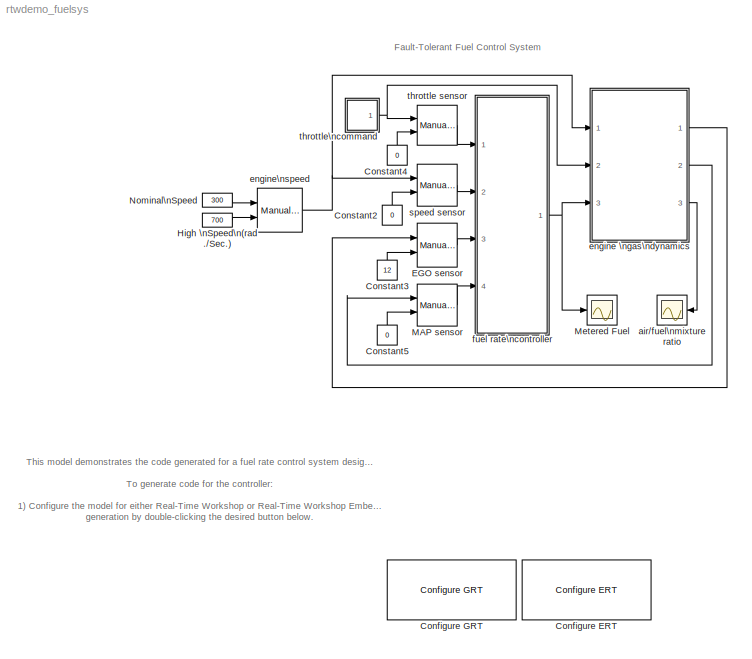
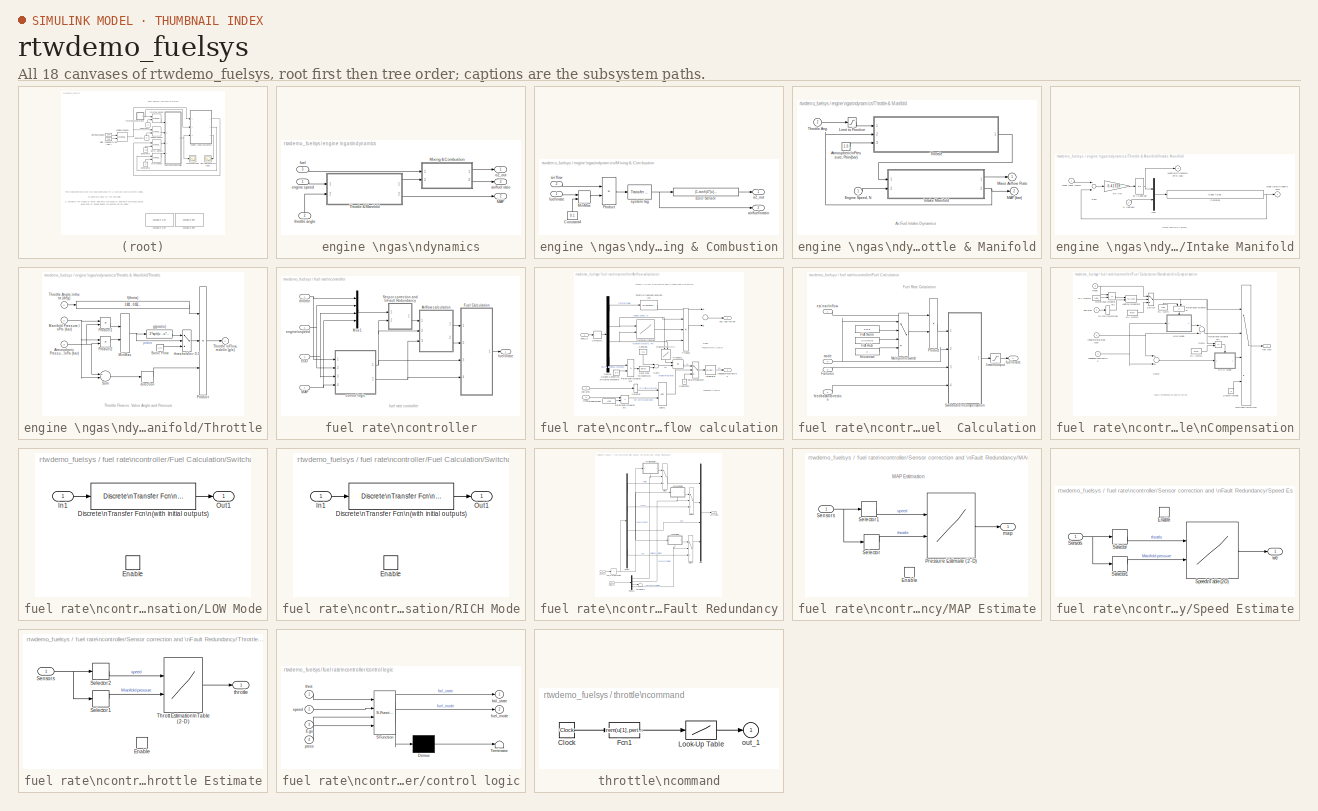
[diagram: thumbnail index - all 18 canvases of the model, root first then tree order]
MODEL rtwdemo_fuelsys
KIND model
CONFIG PostLoadFcn = disp(rtwdemolicensecheck('sfsfc'))
CONFIG PreLoadFcn = load fsysdat
BLOCK [Reference] Configure ERT  REF=rtwdemowidgets/Configure ERT
  Ports = []
  ShowPortLabels = on
  SourceBlock = rtwdemowidgets/Configure ERT
BLOCK [Reference] Configure GRT  REF=rtwdemowidgets/Configure GRT
  Ports = []
  ShowPortLabels = on
  SourceBlock = rtwdemowidgets/Configure GRT
BLOCK [Constant] Constant2
  Value = 0
BLOCK [Constant] Constant3
  Value = 12
BLOCK [Constant] Constant4
  Value = 0
BLOCK [Constant] Constant5
  Value = 0
BLOCK [Reference] EGO sensor  REF=simulink/Signal\nRouting/Manual Switch
  Ports = [2, 1]
  ShowPortLabels = on
  SourceBlock = simulink/Signal\nRouting/Manual Switch
  SourceType = Manual Switch
  action = 0
  sw = 1
BLOCK [Constant] High \nSpeed\n(rad.//Sec.)
  Value = 700
BLOCK [Reference] MAP sensor  REF=simulink/Signal\nRouting/Manual Switch
  Ports = [2, 1]
  ShowPortLabels = on
  SourceBlock = simulink/Signal\nRouting/Manual Switch
  SourceType = Manual Switch
  action = 0
  sw = 1
BLOCK [Scope] Metered Fuel
  DataFormat = Array
  LimitDataPoints = off
  NumInputPorts = 1
  Ports = [1]
  TickLabels = on
  TimeRange = 8
  YMax = 2.25
  YMin = 0.75
BLOCK [Constant] Nominal\nSpeed
  Value = 300
BLOCK [Scope] air//fuel\nmixture ratio
  DataFormat = Array
  LimitDataPoints = off
  NumInputPorts = 1
  Ports = [1]
  TickLabels = on
  TimeRange = 8
  YMax = 16
  YMin = 11
BLOCK [SubSystem] engine \ngas\ndynamics
  MinAlgLoopOccurrences = off
  Ports = [3, 3]
  PropExecContextAcrossSSBoundary = on
  RTWSystemCode = Auto
  TreatAsAtomicUnit = off
BLOCK [Outport] engine \ngas\ndynamics/MAP
  BusOutputAsStruct = off
  IconDisplay = Port number
  InitialOutput = 0
  Port = 2
BLOCK [SubSystem] engine \ngas\ndynamics/Mixing & Combustion
  MinAlgLoopOccurrences = off
  Ports = [2, 2]
  PropExecContextAcrossSSBoundary = on
  RTWSystemCode = Auto
  TreatAsAtomicUnit = off
BLOCK [Constant] engine \ngas\ndynamics/Mixing & Combustion/Constant4
  Value = 0.1
BLOCK [Fcn] engine \ngas\ndynamics/Mixing & Combustion/EGO Sensor
  Expr = (1-tanh(4*(u[1]-14.6)))/2
BLOCK [MinMax] engine \ngas\ndynamics/Mixing & Combustion/MinMax
  Function = max
  Inputs = 2
  Ports = [2, 1]
BLOCK [Product] engine \ngas\ndynamics/Mixing & Combustion/Product
  Inputs = */
  Ports = [2, 1]
BLOCK [Inport] engine \ngas\ndynamics/Mixing & Combustion/air flow
  IconDisplay = Port number
  LatchInput = off
  Port = 2
BLOCK [Outport] engine \ngas\ndynamics/Mixing & Combustion/air//fuel\nratio
  BusOutputAsStruct = off
  IconDisplay = Port number
  InitialOutput = 0
  Port = 2
BLOCK [Inport] engine \ngas\ndynamics/Mixing & Combustion/fuel\nrate
  IconDisplay = Port number
  LatchInput = off
  Port = 1
BLOCK [Outport] engine \ngas\ndynamics/Mixing & Combustion/o2_out
  BusOutputAsStruct = off
  IconDisplay = Port number
  InitialOutput = 0
BLOCK [Reference] engine \ngas\ndynamics/Mixing & Combustion/system lag  REF=simulink_extras/Additional\nLinear/Transfer Fcn\n(with initial outputs)
  D = [1 3]
  N = 3
  Ports = [1, 1]
  ShowPortLabels = on
  SourceBlock = simulink_extras/Additional\nLinear/Transfer Fcn\n(with initial outputs)
  SourceType = Transfer Function with Initial Outputs
  U0 = 1/14.6
  Y0 = 1/14.6
BLOCK [SubSystem] engine \ngas\ndynamics/Throttle & Manifold
  MinAlgLoopOccurrences = off
  Ports = [2, 2]
  PropExecContextAcrossSSBoundary = on
  RTWSystemCode = Auto
  TreatAsAtomicUnit = off
BLOCK [Constant] engine \ngas\ndynamics/Throttle & Manifold/Atmospheric\nPressure, Pa\n(bar)
  Value = 1.0
BLOCK [Inport] engine \ngas\ndynamics/Throttle & Manifold/Engine Speed, N
  IconDisplay = Port number
  LatchInput = off
  Port = 1
BLOCK [SubSystem] engine \ngas\ndynamics/Throttle & Manifold/Intake Manifold
  MinAlgLoopOccurrences = off
  Ports = [2, 2]
  PropExecContextAcrossSSBoundary = on
  RTWSystemCode = Auto
  TreatAsAtomicUnit = off
BLOCK [Outport] engine \ngas\ndynamics/Throttle & Manifold/Intake Manifold/Manifold Pressure,\nPm (bar)
  BusOutputAsStruct = off
  IconDisplay = Port number
  InitialOutput = 0
  Port = 2
BLOCK [Mux] engine \ngas\ndynamics/Throttle & Manifold/Intake Manifold/Mux
  Inputs = 2
  Ports = [2, 1]
BLOCK [Inport] engine \ngas\ndynamics/Throttle & Manifold/Intake Manifold/N (rad//sec)
  IconDisplay = Port number
  LatchInput = off
  Port = 2
BLOCK [Fcn] engine \ngas\ndynamics/Throttle & Manifold/Intake Manifold/Pumping
  Expr = -0.366 + 0.08979*u[1]*u[2] - 0.0337*u[2]*u[1]*u[1] + 0.0001*u[1]*u[2]*u[2]
BLOCK [Gain] engine \ngas\ndynamics/Throttle & Manifold/Intake Manifold/RT//Vm
  Gain = 0.41328
BLOCK [Sum] engine \ngas\ndynamics/Throttle & Manifold/Intake Manifold/Sum
  Inputs = +-
  Ports = [2, 1]
BLOCK [Inport] engine \ngas\ndynamics/Throttle & Manifold/Intake Manifold/mdot Input \n(g//s)
  IconDisplay = Port number
  LatchInput = off
  Port = 1
BLOCK [Outport] engine \ngas\ndynamics/Throttle & Manifold/Intake Manifold/mdot to\nCylinder\n (g//s)
  BusOutputAsStruct = off
  IconDisplay = Port number
  InitialOutput = 0
BLOCK [Integrator] engine \ngas\ndynamics/Throttle & Manifold/Intake Manifold/p0 = 0.589 bar
  InitialCondition = .589
  Ports = [1, 1]
BLOCK [Saturate] engine \ngas\ndynamics/Throttle & Manifold/Limit to Positive
  LowerLimit = 0
  UpperLimit = inf
BLOCK [Outport] engine \ngas\ndynamics/Throttle & Manifold/MAP (bar)
  BusOutputAsStruct = off
  IconDisplay = Port number
  InitialOutput = 0
  Port = 2
BLOCK [Outport] engine \ngas\ndynamics/Throttle & Manifold/Mass Airflow Rate
  BusOutputAsStruct = off
  IconDisplay = Port number
  InitialOutput = 0
BLOCK [SubSystem] engine \ngas\ndynamics/Throttle & Manifold/Throttle
  MinAlgLoopOccurrences = off
  Ports = [3, 1]
  PropExecContextAcrossSSBoundary = on
  RTWSystemCode = Auto
  TreatAsAtomicUnit = off
BLOCK [Inport] engine \ngas\ndynamics/Throttle & Manifold/Throttle Ang.
  IconDisplay = Port number
  LatchInput = off
  Port = 2
BLOCK [Inport] engine \ngas\ndynamics/Throttle & Manifold/Throttle/Atmospheric Pressure,\nPa (bar) 
  IconDisplay = Port number
  LatchInput = off
  Port = 3
BLOCK [Inport] engine \ngas\ndynamics/Throttle & Manifold/Throttle/Manifold Pressure,\nPm (bar)
  IconDisplay = Port number
  LatchInput = off
  Port = 2
BLOCK [MinMax] engine \ngas\ndynamics/Throttle & Manifold/Throttle/MinMax
  Function = min
  Inputs = 2
  Ports = [2, 1]
BLOCK [Product] engine \ngas\ndynamics/Throttle & Manifold/Throttle/Product
  Inputs = 3
  Ports = [3, 1]
BLOCK [Product] engine \ngas\ndynamics/Throttle & Manifold/Throttle/Product1
  Inputs = */
  Ports = [2, 1]
BLOCK [Product] engine \ngas\ndynamics/Throttle & Manifold/Throttle/Product2
  Inputs = /*
  Ports = [2, 1]
BLOCK [Constant] engine \ngas\ndynamics/Throttle & Manifold/Throttle/Sonic Flow 
  Value = 1.0
BLOCK [Sum] engine \ngas\ndynamics/Throttle & Manifold/Throttle/Sum
  Inputs = +-
  Ports = [2, 1]
BLOCK [Inport] engine \ngas\ndynamics/Throttle & Manifold/Throttle/Throttle Angle,\ntheta (deg)
  IconDisplay = Port number
  LatchInput = off
  Port = 1
BLOCK [Outport] engine \ngas\ndynamics/Throttle & Manifold/Throttle/Throttle \nFlow, mdot\n (g//s)
  BusOutputAsStruct = off
  IconDisplay = Port number
  InitialOutput = 0
BLOCK [Signum] engine \ngas\ndynamics/Throttle & Manifold/Throttle/direction
BLOCK [Fcn] engine \ngas\ndynamics/Throttle & Manifold/Throttle/f(theta)
  Expr = 2.821 - 0.05231*u[1] + 0.10299*u[1]*u[1] - 0.00063*u[1]*u[1]*u[1]
BLOCK [Fcn] engine \ngas\ndynamics/Throttle & Manifold/Throttle/g(pratio)
  Expr = 2*sqrt(u - u*u)
BLOCK [Switch] engine \ngas\ndynamics/Throttle & Manifold/Throttle/threshold\n= 0.5
  Threshold = 0.5
BLOCK [Outport] engine \ngas\ndynamics/air//fuel ratio
  BusOutputAsStruct = off
  IconDisplay = Port number
  InitialOutput = 0
  Port = 3
BLOCK [Inport] engine \ngas\ndynamics/engine speed
  IconDisplay = Port number
  LatchInput = off
  Port = 1
BLOCK [Inport] engine \ngas\ndynamics/fuel
  IconDisplay = Port number
  LatchInput = off
  Port = 3
BLOCK [Outport] engine \ngas\ndynamics/o2_out
  BusOutputAsStruct = off
  IconDisplay = Port number
  InitialOutput = 0
BLOCK [Inport] engine \ngas\ndynamics/throttle angle
  IconDisplay = Port number
  LatchInput = off
  Port = 2
BLOCK [Reference] engine\nspeed  REF=simulink/Signal\nRouting/Manual Switch
  Ports = [2, 1]
  ShowPortLabels = on
  SourceBlock = simulink/Signal\nRouting/Manual Switch
  SourceType = Manual Switch
  action = 0
  sw = 1
BLOCK [SubSystem] fuel rate\ncontroller
  MinAlgLoopOccurrences = off
  Ports = [4, 1]
  PropExecContextAcrossSSBoundary = on
  RTWSystemCode = Auto
  TreatAsAtomicUnit = off
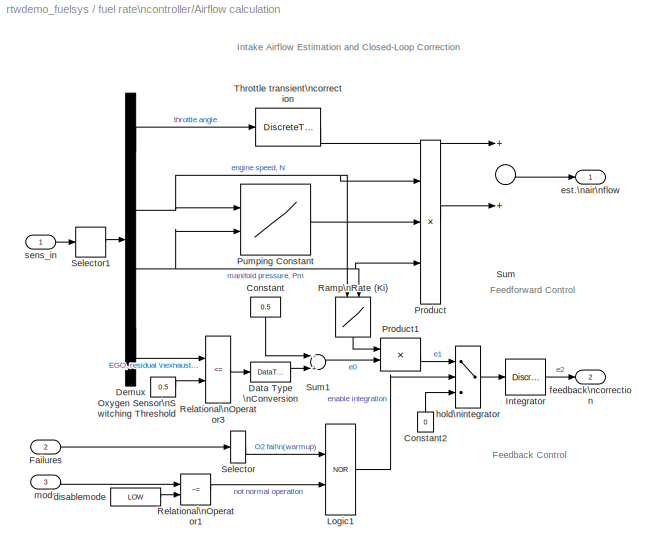
BLOCK [SubSystem] fuel rate\ncontroller/Airflow calculation
  MinAlgLoopOccurrences = off
  Ports = [3, 2]
  PropExecContextAcrossSSBoundary = on
  RTWSystemCode = Auto
  TreatAsAtomicUnit = off
BLOCK [Constant] fuel rate\ncontroller/Airflow calculation/Constant
  Value = 0.5
BLOCK [Constant] fuel rate\ncontroller/Airflow calculation/Constant2
  Value = 0
BLOCK [DataTypeConversion] fuel rate\ncontroller/Airflow calculation/Data Type \nConversion
  OutDataTypeMode = double
BLOCK [Demux] fuel rate\ncontroller/Airflow calculation/Demux
  Ports = [1, 4]
BLOCK [Inport] fuel rate\ncontroller/Airflow calculation/Failures
  IconDisplay = Port number
  LatchInput = off
  Port = 2
BLOCK [DiscreteIntegrator] fuel rate\ncontroller/Airflow calculation/Integrator
  ExternalReset = none
  ICPrevOutput = DiscIntNeverNeededParam
  ICPrevScaledInput = DiscIntNeverNeededParam
  InitialCondition = -0.01
  InitialConditionSource = internal
  IntegratorMethod = Integration: Forward Euler
  Ports = [1, 1]
  SampleTime = .01
BLOCK [Logic] fuel rate\ncontroller/Airflow calculation/Logic1
  Operator = NOR
  Ports = [2, 1]
BLOCK [Constant] fuel rate\ncontroller/Airflow calculation/Oxygen Sensor\nSwitching Threshold
  Value = 0.5
BLOCK [Product] fuel rate\ncontroller/Airflow calculation/Product
  Inputs = 3
  Ports = [3, 1]
BLOCK [Product] fuel rate\ncontroller/Airflow calculation/Product1
  Ports = [2, 1]
BLOCK [Lookup2D] fuel rate\ncontroller/Airflow calculation/Pumping Constant
  ColumnIndex = press
  DialogController = Simulink.DDGSource
  OutputValues = pumpCon
  RowIndex = SpeedVect
BLOCK [Lookup2D] fuel rate\ncontroller/Airflow calculation/Ramp\nRate (Ki)
  ColumnIndex = [0:0.2:1]
  DialogController = Simulink.DDGSource
  OutputValues = [1:5]'*[1:6]*Ki
  RowIndex = [100:100:500]
BLOCK [RelationalOperator] fuel rate\ncontroller/Airflow calculation/Relational\nOperator1
  Operator = ~=
BLOCK [RelationalOperator] fuel rate\ncontroller/Airflow calculation/Relational\nOperator3
  Operator = <=
BLOCK [Selector] fuel rate\ncontroller/Airflow calculation/Selector
  Elements = 3
  InputPortWidth = 4
  Ports = [1, 1]
BLOCK [Selector] fuel rate\ncontroller/Airflow calculation/Selector1
  Elements = [1 2 4 3]
  InputPortWidth = 4
  Ports = [1, 1]
BLOCK [Sum] fuel rate\ncontroller/Airflow calculation/Sum
  Inputs = 2
  Ports = [2, 1]
BLOCK [Sum] fuel rate\ncontroller/Airflow calculation/Sum1
  Inputs = -+
  Ports = [2, 1]
BLOCK [DiscreteTransferFcn] fuel rate\ncontroller/Airflow calculation/Throttle transient\ncorrection
  Denominator = [1 -0.8]
  Numerator = [0.01 -0.01]
  SampleTime = .01
BLOCK [Constant] fuel rate\ncontroller/Airflow calculation/disablemode
  Value = LOW
BLOCK [Outport] fuel rate\ncontroller/Airflow calculation/est.\nair\nflow
  BusOutputAsStruct = off
  IconDisplay = Port number
  InitialOutput = 0
BLOCK [Outport] fuel rate\ncontroller/Airflow calculation/feedback\ncorrection
  BusOutputAsStruct = off
  IconDisplay = Port number
  InitialOutput = 0
  Port = 2
BLOCK [Switch] fuel rate\ncontroller/Airflow calculation/hold\nintegrator
  Threshold = 1
BLOCK [Inport] fuel rate\ncontroller/Airflow calculation/mode
  IconDisplay = Port number
  LatchInput = off
  Port = 3
BLOCK [Inport] fuel rate\ncontroller/Airflow calculation/sens_in
  IconDisplay = Port number
  LatchInput = off
  Port = 1
BLOCK [Inport] fuel rate\ncontroller/EGO
  IconDisplay = Port number
  LatchInput = off
  Port = 3
BLOCK [SubSystem] fuel rate\ncontroller/Fuel  Calculation
  MinAlgLoopOccurrences = off
  Ports = [4, 1]
  PropExecContextAcrossSSBoundary = on
  RTWSystemCode = Auto
  TreatAsAtomicUnit = off
BLOCK [Constant] fuel rate\ncontroller/Fuel  Calculation/F//A Norm
  Value = 1/14.6
BLOCK [Constant] fuel rate\ncontroller/Fuel  Calculation/F//A Rich
  Value = 1/(14.6*0.8)
BLOCK [Inport] fuel rate\ncontroller/Fuel  Calculation/Failures
  IconDisplay = Port number
  LatchInput = off
  Port = 3
BLOCK [MultiPortSwitch] fuel rate\ncontroller/Fuel  Calculation/Multiport\nSwitch
  Inputs = 3
  Ports = [4, 1]
BLOCK [Product] fuel rate\ncontroller/Fuel  Calculation/Product
  Ports = [2, 1]
BLOCK [Constant] fuel rate\ncontroller/Fuel  Calculation/Shutdown
  Value = 0
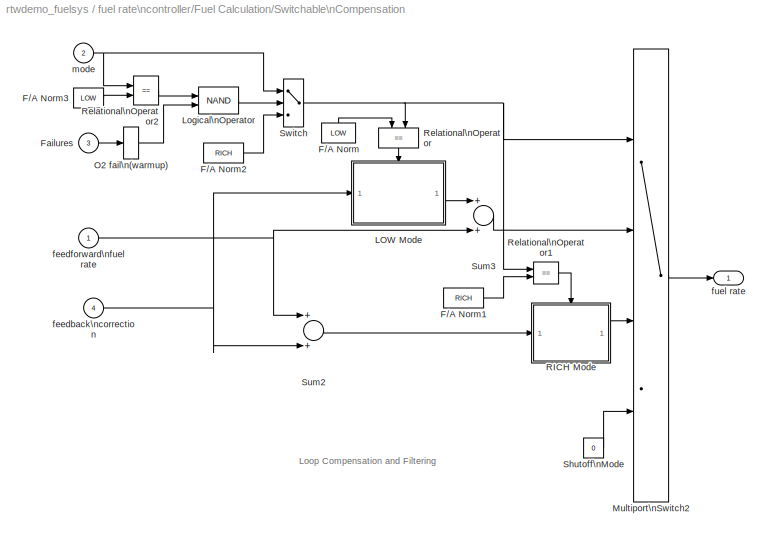
BLOCK [SubSystem] fuel rate\ncontroller/Fuel  Calculation/Switchable\nCompensation
  MaskIconFrame = on
  MaskIconOpaque = on
  MaskIconRotate = none
  MaskIconUnits = autoscale
  MinAlgLoopOccurrences = off
  Ports = [4, 1]
  PropExecContextAcrossSSBoundary = on
  RTWSystemCode = Auto
  TreatAsAtomicUnit = off
BLOCK [Constant] fuel rate\ncontroller/Fuel  Calculation/Switchable\nCompensation/F//A Norm
  Value = LOW
BLOCK [Constant] fuel rate\ncontroller/Fuel  Calculation/Switchable\nCompensation/F//A Norm1
  Value = RICH
BLOCK [Constant] fuel rate\ncontroller/Fuel  Calculation/Switchable\nCompensation/F//A Norm2
  Value = RICH
BLOCK [Constant] fuel rate\ncontroller/Fuel  Calculation/Switchable\nCompensation/F//A Norm3
  Value = LOW
BLOCK [Inport] fuel rate\ncontroller/Fuel  Calculation/Switchable\nCompensation/Failures
  IconDisplay = Port number
  LatchInput = off
  Port = 3
BLOCK [SubSystem] fuel rate\ncontroller/Fuel  Calculation/Switchable\nCompensation/LOW Mode
  MaskCallbackString = ||||
  MaskDisplay = dpoly(num,den,'z')
  MaskEnableString = on,on,on,on,on
  MaskIconFrame = on
  MaskIconOpaque = off
  MaskIconRotate = none
  MaskIconUnits = autoscale
  MaskPromptString = numerator polynomial|denominator polynomial|initial input|initial output|sample time
  MaskStyleString = edit,edit,edit,edit,edit
  MaskTabNameString = ,,,,
  MaskToolTipString = on,on,on,on,on
  MaskTunableValueString = on,on,on,on,on
  MaskType = enabled discrete-time transfer function
  MaskValueString = B1|A1|-0.01|-0.01|0.01
  MaskVarAliasString = ,,,,
  MaskVariables = num=@1;den=@2;u0=@3;y0=@4;Ts=@5;
  MaskVisibilityString = on,on,on,on,on
  MinAlgLoopOccurrences = off
  Ports = [1, 1, 1]
  PropExecContextAcrossSSBoundary = on
  RTWSystemCode = Auto
  TreatAsAtomicUnit = off
BLOCK [Reference] fuel rate\ncontroller/Fuel  Calculation/Switchable\nCompensation/LOW Mode/Discrete\nTransfer Fcn\n(with initial outputs)  REF=simulink_extras/Additional\nDiscrete/Discrete\nTransfer Fcn\n(with initial outputs)
  D = den
  N = num
  Ports = [1, 1]
  ShowPortLabels = on
  SourceBlock = simulink_extras/Additional\nDiscrete/Discrete\nTransfer Fcn\n(with initial outputs)
  SourceType = Discrete Transfer Function with Initial Outputs
  TS = Ts
  U0 = u0
  Y0 = y0
BLOCK [EnablePort] fuel rate\ncontroller/Fuel  Calculation/Switchable\nCompensation/LOW Mode/Enable
  Ports = []
  StatesWhenEnabling = reset
BLOCK [Inport] fuel rate\ncontroller/Fuel  Calculation/Switchable\nCompensation/LOW Mode/In1
  IconDisplay = Port number
  LatchInput = off
  Port = 1
BLOCK [Outport] fuel rate\ncontroller/Fuel  Calculation/Switchable\nCompensation/LOW Mode/Out1
  BusOutputAsStruct = off
  IconDisplay = Port number
  InitialOutput = y0
BLOCK [Logic] fuel rate\ncontroller/Fuel  Calculation/Switchable\nCompensation/Logical\nOperator
  Operator = NAND
  Ports = [2, 1]
BLOCK [MultiPortSwitch] fuel rate\ncontroller/Fuel  Calculation/Switchable\nCompensation/Multiport\nSwitch2
  Inputs = 3
  Ports = [4, 1]
BLOCK [Selector] fuel rate\ncontroller/Fuel  Calculation/Switchable\nCompensation/O2 fail\n(warmup)
  Elements = 3
  InputPortWidth = 4
  Ports = [1, 1]
BLOCK [SubSystem] fuel rate\ncontroller/Fuel  Calculation/Switchable\nCompensation/RICH Mode
  MaskCallbackString = ||||
  MaskDisplay = dpoly(num,den,'z')
  MaskEnableString = on,on,on,on,on
  MaskIconFrame = on
  MaskIconOpaque = off
  MaskIconRotate = none
  MaskIconUnits = autoscale
  MaskPromptString = numerator polynomial|denominator polynomial|initial input|initial output|sample time
  MaskStyleString = edit,edit,edit,edit,edit
  MaskTabNameString = ,,,,
  MaskToolTipString = on,on,on,on,on
  MaskTunableValueString = on,on,on,on,on
  MaskType = enabled discrete-time transfer function
  MaskValueString = B2|A2|1.6|1.6|0.01
  MaskVarAliasString = ,,,,
  MaskVariables = num=@1;den=@2;u0=@3;y0=@4;Ts=@5;
  MaskVisibilityString = on,on,on,on,on
  MinAlgLoopOccurrences = off
  Ports = [1, 1, 1]
  PropExecContextAcrossSSBoundary = on
  RTWSystemCode = Auto
  TreatAsAtomicUnit = off
BLOCK [Reference] fuel rate\ncontroller/Fuel  Calculation/Switchable\nCompensation/RICH Mode/Discrete\nTransfer Fcn\n(with initial outputs)  REF=simulink_extras/Additional\nDiscrete/Discrete\nTransfer Fcn\n(with initial outputs)
  D = den
  N = num
  Ports = [1, 1]
  ShowPortLabels = on
  SourceBlock = simulink_extras/Additional\nDiscrete/Discrete\nTransfer Fcn\n(with initial outputs)
  SourceType = Discrete Transfer Function with Initial Outputs
  TS = Ts
  U0 = u0
  Y0 = y0
BLOCK [EnablePort] fuel rate\ncontroller/Fuel  Calculation/Switchable\nCompensation/RICH Mode/Enable
  Ports = []
  StatesWhenEnabling = reset
BLOCK [Inport] fuel rate\ncontroller/Fuel  Calculation/Switchable\nCompensation/RICH Mode/In1
  IconDisplay = Port number
  LatchInput = off
  Port = 1
BLOCK [Outport] fuel rate\ncontroller/Fuel  Calculation/Switchable\nCompensation/RICH Mode/Out1
  BusOutputAsStruct = off
  IconDisplay = Port number
  InitialOutput = y0
BLOCK [RelationalOperator] fuel rate\ncontroller/Fuel  Calculation/Switchable\nCompensation/Relational\nOperator
  Operator = ==
BLOCK [RelationalOperator] fuel rate\ncontroller/Fuel  Calculation/Switchable\nCompensation/Relational\nOperator1
  Operator = ==
BLOCK [RelationalOperator] fuel rate\ncontroller/Fuel  Calculation/Switchable\nCompensation/Relational\nOperator2
  Operator = ==
BLOCK [Constant] fuel rate\ncontroller/Fuel  Calculation/Switchable\nCompensation/Shutoff\nMode
  Value = 0
BLOCK [Sum] fuel rate\ncontroller/Fuel  Calculation/Switchable\nCompensation/Sum2
  Ports = [2, 1]
BLOCK [Sum] fuel rate\ncontroller/Fuel  Calculation/Switchable\nCompensation/Sum3
  Ports = [2, 1]
BLOCK [Switch] fuel rate\ncontroller/Fuel  Calculation/Switchable\nCompensation/Switch
  Threshold = 1
BLOCK [Inport] fuel rate\ncontroller/Fuel  Calculation/Switchable\nCompensation/feedback\ncorrection
  IconDisplay = Port number
  LatchInput = off
  Port = 4
BLOCK [Inport] fuel rate\ncontroller/Fuel  Calculation/Switchable\nCompensation/feedforward\nfuel rate
  IconDisplay = Port number
  LatchInput = off
  Port = 1
BLOCK [Outport] fuel rate\ncontroller/Fuel  Calculation/Switchable\nCompensation/fuel rate
  BusOutputAsStruct = off
  IconDisplay = Port number
  InitialOutput = 0
BLOCK [Inport] fuel rate\ncontroller/Fuel  Calculation/Switchable\nCompensation/mode
  IconDisplay = Port number
  LatchInput = off
  Port = 2
BLOCK [Inport] fuel rate\ncontroller/Fuel  Calculation/est.\nair\nflow
  IconDisplay = Port number
  LatchInput = off
  Port = 1
BLOCK [Inport] fuel rate\ncontroller/Fuel  Calculation/feedback\ncorrection
  IconDisplay = Port number
  LatchInput = off
  Port = 2
BLOCK [Outport] fuel rate\ncontroller/Fuel  Calculation/fuel\nrate
  BusOutputAsStruct = off
  IconDisplay = Port number
  InitialOutput = 0
BLOCK [Saturate] fuel rate\ncontroller/Fuel  Calculation/limit\noutput
  LowerLimit = 0
  UpperLimit = 100
BLOCK [Inport] fuel rate\ncontroller/Fuel  Calculation/mode
  IconDisplay = Port number
  LatchInput = off
  Port = 4
BLOCK [Inport] fuel rate\ncontroller/MAP
  IconDisplay = Port number
  LatchInput = off
  Port = 4
BLOCK [Mux] fuel rate\ncontroller/Mux1
  Ports = [4, 1]
BLOCK [SubSystem] fuel rate\ncontroller/Sensor correction and \nFault Redundancy
  MinAlgLoopOccurrences = off
  Ports = [2, 1]
  PropExecContextAcrossSSBoundary = on
  RTWSystemCode = Auto
  TreatAsAtomicUnit = off
BLOCK [Outport] fuel rate\ncontroller/Sensor correction and \nFault Redundancy/Corrected
  BusOutputAsStruct = off
  IconDisplay = Port number
  InitialOutput = 0
BLOCK [Demux] fuel rate\ncontroller/Sensor correction and \nFault Redundancy/Demux
  Ports = [1, 4]
BLOCK [Demux] fuel rate\ncontroller/Sensor correction and \nFault Redundancy/Demux1
  Ports = [1, 4]
BLOCK [Inport] fuel rate\ncontroller/Sensor correction and \nFault Redundancy/Failures
  IconDisplay = Port number
  LatchInput = off
  Port = 2
BLOCK [SubSystem] fuel rate\ncontroller/Sensor correction and \nFault Redundancy/MAP Estimate
  MinAlgLoopOccurrences = off
  Ports = [1, 1, 1]
  PropExecContextAcrossSSBoundary = on
  RTWSystemCode = Auto
  TreatAsAtomicUnit = off
BLOCK [EnablePort] fuel rate\ncontroller/Sensor correction and \nFault Redundancy/MAP Estimate/Enable
  Ports = []
BLOCK [Lookup2D] fuel rate\ncontroller/Sensor correction and \nFault Redundancy/MAP Estimate/Pressure Estimate (2-D)
  ColumnIndex = ThrotVect
  DialogController = Simulink.DDGSource
  OutputValues = PressEst
  RowIndex = SpeedVect
BLOCK [Selector] fuel rate\ncontroller/Sensor correction and \nFault Redundancy/MAP Estimate/Selector
  InputPortWidth = 4
  Ports = [1, 1]
BLOCK [Selector] fuel rate\ncontroller/Sensor correction and \nFault Redundancy/MAP Estimate/Selector1
  Elements = 2
  InputPortWidth = 4
  Ports = [1, 1]
BLOCK [Inport] fuel rate\ncontroller/Sensor correction and \nFault Redundancy/MAP Estimate/Sensors
  IconDisplay = Port number
  LatchInput = off
  Port = 1
BLOCK [Outport] fuel rate\ncontroller/Sensor correction and \nFault Redundancy/MAP Estimate/map
  BusOutputAsStruct = off
  IconDisplay = Port number
  InitialOutput = 0
BLOCK [Mux] fuel rate\ncontroller/Sensor correction and \nFault Redundancy/Mux
  Ports = [4, 1]
BLOCK [Inport] fuel rate\ncontroller/Sensor correction and \nFault Redundancy/Sensors
  IconDisplay = Port number
  LatchInput = off
  Port = 1
BLOCK [SubSystem] fuel rate\ncontroller/Sensor correction and \nFault Redundancy/Speed Estimate
  MinAlgLoopOccurrences = off
  Ports = [1, 1, 1]
  PropExecContextAcrossSSBoundary = on
  RTWSystemCode = Auto
  TreatAsAtomicUnit = off
BLOCK [EnablePort] fuel rate\ncontroller/Sensor correction and \nFault Redundancy/Speed Estimate/Enable
  Ports = []
BLOCK [Selector] fuel rate\ncontroller/Sensor correction and \nFault Redundancy/Speed Estimate/Selector
  InputPortWidth = 4
  Ports = [1, 1]
BLOCK [Selector] fuel rate\ncontroller/Sensor correction and \nFault Redundancy/Speed Estimate/Selector1
  Elements = 4
  InputPortWidth = 4
  Ports = [1, 1]
BLOCK [Inport] fuel rate\ncontroller/Sensor correction and \nFault Redundancy/Speed Estimate/Sensors
  IconDisplay = Port number
  LatchInput = off
  Port = 1
BLOCK [Lookup2D] fuel rate\ncontroller/Sensor correction and \nFault Redundancy/Speed Estimate/Speed\nTable (2-D)
  ColumnIndex = press
  DialogController = Simulink.DDGSource
  OutputValues = SpeedEst
  RowIndex = ThrotVect
BLOCK [Outport] fuel rate\ncontroller/Sensor correction and \nFault Redundancy/Speed Estimate/we
  BusOutputAsStruct = off
  IconDisplay = Port number
  InitialOutput = 0
BLOCK [Switch] fuel rate\ncontroller/Sensor correction and \nFault Redundancy/Switch
  Threshold = 1
BLOCK [Switch] fuel rate\ncontroller/Sensor correction and \nFault Redundancy/Switch3
  Threshold = 1
BLOCK [Switch] fuel rate\ncontroller/Sensor correction and \nFault Redundancy/Switch4
  Threshold = 1
BLOCK [Terminator] fuel rate\ncontroller/Sensor correction and \nFault Redundancy/Terminator1
BLOCK [SubSystem] fuel rate\ncontroller/Sensor correction and \nFault Redundancy/Throttle Estimate
  MinAlgLoopOccurrences = off
  Ports = [1, 1, 1]
  PropExecContextAcrossSSBoundary = on
  RTWSystemCode = Auto
  TreatAsAtomicUnit = off
BLOCK [EnablePort] fuel rate\ncontroller/Sensor correction and \nFault Redundancy/Throttle Estimate/Enable
  Ports = []
BLOCK [Selector] fuel rate\ncontroller/Sensor correction and \nFault Redundancy/Throttle Estimate/Selector1
  Elements = 4
  InputPortWidth = 4
  Ports = [1, 1]
BLOCK [Selector] fuel rate\ncontroller/Sensor correction and \nFault Redundancy/Throttle Estimate/Selector2
  Elements = 2
  InputPortWidth = 4
  Ports = [1, 1]
BLOCK [Inport] fuel rate\ncontroller/Sensor correction and \nFault Redundancy/Throttle Estimate/Sensors
  IconDisplay = Port number
  LatchInput = off
  Port = 1
BLOCK [Lookup2D] fuel rate\ncontroller/Sensor correction and \nFault Redundancy/Throttle Estimate/Thrott Estimation\nTable (2-D)
  ColumnIndex = press
  DialogController = Simulink.DDGSource
  OutputValues = ThrotEst
  RowIndex = SpeedVect
BLOCK [Outport] fuel rate\ncontroller/Sensor correction and \nFault Redundancy/Throttle Estimate/throtle
  BusOutputAsStruct = off
  IconDisplay = Port number
  InitialOutput = 0
BLOCK [ZeroOrderHold] fuel rate\ncontroller/Sensor correction and \nFault Redundancy/Zero-Order\nHold
  SampleTime = 0.01
BLOCK [SubSystem] fuel rate\ncontroller/control logic
  Description = Stateflow diagram to determine control system operating mode
  MaskDescription = Stateflow diagram
  MaskDisplay = plot(sf('Private','sfblk','xIcon'),sf('Private','sfblk','yIcon'));text(0.5,0,sf('Private', 'sfblk', 'tIcon'),'HorizontalAl','Center','VerticalAl','Bottom');
  MaskIconFrame = off
  MaskIconOpaque = off
  MaskIconRotate = none
  MaskIconUnits = autoscale
  MaskSelfModifiable = on
  MaskType = Stateflow
  MinAlgLoopOccurrences = off
  Ports = [4, 2]
  PropExecContextAcrossSSBoundary = on
  RTWSystemCode = Auto
  TreatAsAtomicUnit = off
BLOCK [Demux] fuel rate\ncontroller/control logic/ Demux 
  Outputs = 1
  Ports = [1, 1]
BLOCK [S-Function] fuel rate\ncontroller/control logic/ SFunction 
  FunctionName = sf_sfun
  Parameters = DISABLED,LOW,RICH,hys,max_ego,max_press,max_speed,max_throt,min_press,min_throt,o2_t_thresh,zero_thresh
  PortCounts = [4 3]
  Ports = [4, 3]
  Tag = Stateflow S-Function rtwdemo_fuelsys 1
BLOCK [Terminator] fuel rate\ncontroller/control logic/ Terminator 
BLOCK [Inport] fuel rate\ncontroller/control logic/Ego
  IconDisplay = Port number
  LatchInput = off
  Port = 3
BLOCK [Outport] fuel rate\ncontroller/control logic/fail_state
  BusOutputAsStruct = off
  IconDisplay = Port number
BLOCK [Outport] fuel rate\ncontroller/control logic/fuel_mode
  BusOutputAsStruct = off
  IconDisplay = Port number
  Port = 2
BLOCK [Inport] fuel rate\ncontroller/control logic/press
  IconDisplay = Port number
  LatchInput = off
  Port = 4
BLOCK [Inport] fuel rate\ncontroller/control logic/speed
  IconDisplay = Port number
  LatchInput = off
  Port = 2
BLOCK [Inport] fuel rate\ncontroller/control logic/throt
  IconDisplay = Port number
  LatchInput = off
  Port = 1
BLOCK [Inport] fuel rate\ncontroller/engine\nspeed
  IconDisplay = Port number
  LatchInput = off
  Port = 2
BLOCK [Outport] fuel rate\ncontroller/fuel\nrate
  BusOutputAsStruct = off
  IconDisplay = Port number
  InitialOutput = 0
BLOCK [Inport] fuel rate\ncontroller/throttle
  IconDisplay = Port number
  LatchInput = off
  Port = 1
BLOCK [Reference] speed sensor  REF=simulink/Signal\nRouting/Manual Switch
  Ports = [2, 1]
  ShowPortLabels = on
  SourceBlock = simulink/Signal\nRouting/Manual Switch
  SourceType = Manual Switch
  action = 0
  sw = 1
BLOCK [Reference] throttle sensor  REF=simulink/Signal\nRouting/Manual Switch
  Ports = [2, 1]
  ShowPortLabels = on
  SourceBlock = simulink/Signal\nRouting/Manual Switch
  SourceType = Manual Switch
  action = 0
  sw = 1
BLOCK [SubSystem] throttle\ncommand
  MaskCallbackString = |
  MaskDescription = Repeating table.
  MaskDisplay = plot([rep_seq_t,rep_seq_t+period,rep_seq_t+2*period,rep_seq_t(1)+3*period],[rep_seq_y,rep_seq_y,rep_seq_y,rep_seq_y(1)])
  MaskEnableString = on,on
  MaskHelp = Repeats cycle given in table. Time values should be monotonically increasing.
  MaskIconFrame = on
  MaskIconOpaque = on
  MaskIconRotate = none
  MaskIconUnits = autoscale
  MaskInitialization = period = max(rep_seq_t);\n
  MaskPromptString = Time values:|Output values:
  MaskStyleString = edit,edit
  MaskTabNameString = ,
  MaskToolTipString = on,on
  MaskTunableValueString = on,on
  MaskType = Repeating table
  MaskValueString = [0 2 4]|[10 20 10]
  MaskVarAliasString = ,
  MaskVariables = rep_seq_t=@1;rep_seq_y=@2;
  MaskVisibilityString = on,on
  MinAlgLoopOccurrences = off
  Ports = [0, 1]
  PropExecContextAcrossSSBoundary = on
  RTWSystemCode = Auto
  TreatAsAtomicUnit = off
BLOCK [Clock] throttle\ncommand/Clock
  Decimation = 10
BLOCK [Fcn] throttle\ncommand/Fcn1
  Expr = rem(u[1],period)
BLOCK [Lookup] throttle\ncommand/Look-Up Table
  DialogController = Simulink.DDGSource
  InputValues = rep_seq_t
  OutputValues = rep_seq_y
BLOCK [Outport] throttle\ncommand/out_1
  BusOutputAsStruct = off
  IconDisplay = Port number
  InitialOutput = 0
ANNOTATION (root): Fault-Tolerant Fuel Control System
ANNOTATION (root): This model demonstrates the code generated for a fuel rate control system designed in Simulink and Stateflow.\n\nTo generate code for the controller:\n\n1) Configure the model for either Real-Time Workshop or Real-Time Workshop Embedded Coder code\n generation by double-clicking the desired button below.\n2) Right-click on the 'fuel rate controller' subsystem and select Real-Time Workshop --> Buil...<+172ch>
ANNOTATION engine \ngas\ndynamics/Throttle & Manifold: Air-Fuel Intake Dynamics
ANNOTATION engine \ngas\ndynamics/Throttle & Manifold/Intake Manifold: Intake Manifold Vacuum
ANNOTATION engine \ngas\ndynamics/Throttle & Manifold/Throttle: Throttle Flow vs. Valve Angle and Pressure
ANNOTATION fuel rate\ncontroller: fuel rate controller
ANNOTATION fuel rate\ncontroller/Airflow calculation: Feedback Control
ANNOTATION fuel rate\ncontroller/Airflow calculation: Feedforward Control
ANNOTATION fuel rate\ncontroller/Airflow calculation: Intake Airflow Estimation and Closed-Loop Correction
ANNOTATION fuel rate\ncontroller/Fuel  Calculation: Fuel Rate Calculation
ANNOTATION fuel rate\ncontroller/Fuel  Calculation/Switchable\nCompensation: Loop Compensation and Filtering
ANNOTATION fuel rate\ncontroller/Sensor correction and \nFault Redundancy/MAP Estimate: MAP Estimation
LINE Constant2:1 -> speed sensor:2
LINE Constant3:1 -> EGO sensor:2
LINE Constant4:1 -> throttle sensor:2
LINE Constant5:1 -> MAP sensor:2
LINE EGO sensor:1 -> fuel rate\ncontroller:3
LINE High \nSpeed\n(rad.//Sec.):1 -> engine\nspeed:2
LINE MAP sensor:1 -> fuel rate\ncontroller:4
LINE Nominal\nSpeed:1 -> engine\nspeed:1
LINE engine \ngas\ndynamics/Mixing & Combustion/Constant4:1 -> engine \ngas\ndynamics/Mixing & Combustion/MinMax:2
LINE engine \ngas\ndynamics/Mixing & Combustion/EGO Sensor:1 -> engine \ngas\ndynamics/Mixing & Combustion/o2_out:1
LINE engine \ngas\ndynamics/Mixing & Combustion/MinMax:1 -> engine \ngas\ndynamics/Mixing & Combustion/Product:2
LINE engine \ngas\ndynamics/Mixing & Combustion/Product:1 -> engine \ngas\ndynamics/Mixing & Combustion/system lag:1
LINE engine \ngas\ndynamics/Mixing & Combustion/air flow:1 -> engine \ngas\ndynamics/Mixing & Combustion/Product:1
LINE engine \ngas\ndynamics/Mixing & Combustion/fuel\nrate:1 -> engine \ngas\ndynamics/Mixing & Combustion/MinMax:1
NET engine \ngas\ndynamics/Mixing & Combustion/system lag:1 -> engine \ngas\ndynamics/Mixing & Combustion/EGO Sensor:1, engine \ngas\ndynamics/Mixing & Combustion/air//fuel\nratio:1
LINE engine \ngas\ndynamics/Mixing & Combustion:1 -> engine \ngas\ndynamics/o2_out:1
LINE engine \ngas\ndynamics/Mixing & Combustion:2 -> engine \ngas\ndynamics/air//fuel ratio:1
LINE engine \ngas\ndynamics/Throttle & Manifold/Atmospheric\nPressure, Pa\n(bar):1 -> engine \ngas\ndynamics/Throttle & Manifold/Throttle:3
LINE engine \ngas\ndynamics/Throttle & Manifold/Engine Speed, N:1 -> engine \ngas\ndynamics/Throttle & Manifold/Intake Manifold:2
LINE engine \ngas\ndynamics/Throttle & Manifold/Intake Manifold/Mux:1 -> engine \ngas\ndynamics/Throttle & Manifold/Intake Manifold/Pumping:1
LINE engine \ngas\ndynamics/Throttle & Manifold/Intake Manifold/N (rad//sec):1 -> engine \ngas\ndynamics/Throttle & Manifold/Intake Manifold/Mux:2
NET engine \ngas\ndynamics/Throttle & Manifold/Intake Manifold/Pumping:1 -> engine \ngas\ndynamics/Throttle & Manifold/Intake Manifold/Sum:2, engine \ngas\ndynamics/Throttle & Manifold/Intake Manifold/mdot to\nCylinder\n (g//s):1
LINE engine \ngas\ndynamics/Throttle & Manifold/Intake Manifold/RT//Vm:1 -> engine \ngas\ndynamics/Throttle & Manifold/Intake Manifold/p0 = 0.589 bar:1
LINE engine \ngas\ndynamics/Throttle & Manifold/Intake Manifold/Sum:1 -> engine \ngas\ndynamics/Throttle & Manifold/Intake Manifold/RT//Vm:1
LINE engine \ngas\ndynamics/Throttle & Manifold/Intake Manifold/mdot Input \n(g//s):1 -> engine \ngas\ndynamics/Throttle & Manifold/Intake Manifold/Sum:1
NET engine \ngas\ndynamics/Throttle & Manifold/Intake Manifold/p0 = 0.589 bar:1 -> engine \ngas\ndynamics/Throttle & Manifold/Intake Manifold/Manifold Pressure,\nPm (bar):1, engine \ngas\ndynamics/Throttle & Manifold/Intake Manifold/Mux:1
LINE engine \ngas\ndynamics/Throttle & Manifold/Intake Manifold:1 -> engine \ngas\ndynamics/Throttle & Manifold/Mass Airflow Rate:1
NET engine \ngas\ndynamics/Throttle & Manifold/Intake Manifold:2 -> engine \ngas\ndynamics/Throttle & Manifold/MAP (bar):1, engine \ngas\ndynamics/Throttle & Manifold/Throttle:2
LINE engine \ngas\ndynamics/Throttle & Manifold/Limit to Positive:1 -> engine \ngas\ndynamics/Throttle & Manifold/Throttle:1
LINE engine \ngas\ndynamics/Throttle & Manifold/Throttle Ang.:1 -> engine \ngas\ndynamics/Throttle & Manifold/Limit to Positive:1
NET engine \ngas\ndynamics/Throttle & Manifold/Throttle/Atmospheric Pressure,\nPa (bar) :1 -> engine \ngas\ndynamics/Throttle & Manifold/Throttle/Product1:2, engine \ngas\ndynamics/Throttle & Manifold/Throttle/Product2:2, engine \ngas\ndynamics/Throttle & Manifold/Throttle/Sum:1
NET engine \ngas\ndynamics/Throttle & Manifold/Throttle/Manifold Pressure,\nPm (bar):1 -> engine \ngas\ndynamics/Throttle & Manifold/Throttle/Product1:1, engine \ngas\ndynamics/Throttle & Manifold/Throttle/Product2:1, engine \ngas\ndynamics/Throttle & Manifold/Throttle/Sum:2
NET engine \ngas\ndynamics/Throttle & Manifold/Throttle/MinMax:1 -> engine \ngas\ndynamics/Throttle & Manifold/Throttle/g(pratio):1, engine \ngas\ndynamics/Throttle & Manifold/Throttle/threshold\n= 0.5:2
LINE engine \ngas\ndynamics/Throttle & Manifold/Throttle/Product1:1 -> engine \ngas\ndynamics/Throttle & Manifold/Throttle/MinMax:1
LINE engine \ngas\ndynamics/Throttle & Manifold/Throttle/Product2:1 -> engine \ngas\ndynamics/Throttle & Manifold/Throttle/MinMax:2
LINE engine \ngas\ndynamics/Throttle & Manifold/Throttle/Product:1 -> engine \ngas\ndynamics/Throttle & Manifold/Throttle/Throttle \nFlow, mdot\n (g//s):1
LINE engine \ngas\ndynamics/Throttle & Manifold/Throttle/Sonic Flow :1 -> engine \ngas\ndynamics/Throttle & Manifold/Throttle/threshold\n= 0.5:3
LINE engine \ngas\ndynamics/Throttle & Manifold/Throttle/Sum:1 -> engine \ngas\ndynamics/Throttle & Manifold/Throttle/direction:1
LINE engine \ngas\ndynamics/Throttle & Manifold/Throttle/Throttle Angle,\ntheta (deg):1 -> engine \ngas\ndynamics/Throttle & Manifold/Throttle/f(theta):1
LINE engine \ngas\ndynamics/Throttle & Manifold/Throttle/direction:1 -> engine \ngas\ndynamics/Throttle & Manifold/Throttle/Product:3
LINE engine \ngas\ndynamics/Throttle & Manifold/Throttle/f(theta):1 -> engine \ngas\ndynamics/Throttle & Manifold/Throttle/Product:1
LINE engine \ngas\ndynamics/Throttle & Manifold/Throttle/g(pratio):1 -> engine \ngas\ndynamics/Throttle & Manifold/Throttle/threshold\n= 0.5:1
LINE engine \ngas\ndynamics/Throttle & Manifold/Throttle/threshold\n= 0.5:1 -> engine \ngas\ndynamics/Throttle & Manifold/Throttle/Product:2
LINE engine \ngas\ndynamics/Throttle & Manifold/Throttle:1 -> engine \ngas\ndynamics/Throttle & Manifold/Intake Manifold:1
LINE engine \ngas\ndynamics/Throttle & Manifold:1 -> engine \ngas\ndynamics/Mixing & Combustion:2
LINE engine \ngas\ndynamics/Throttle & Manifold:2 -> engine \ngas\ndynamics/MAP:1
LINE engine \ngas\ndynamics/engine speed:1 -> engine \ngas\ndynamics/Throttle & Manifold:1
LINE engine \ngas\ndynamics/fuel:1 -> engine \ngas\ndynamics/Mixing & Combustion:1
LINE engine \ngas\ndynamics/throttle angle:1 -> engine \ngas\ndynamics/Throttle & Manifold:2
LINE engine \ngas\ndynamics:1 -> EGO sensor:1
LINE engine \ngas\ndynamics:2 -> MAP sensor:1
LINE engine \ngas\ndynamics:3 -> air//fuel\nmixture ratio:1
NET engine\nspeed:1 -> engine \ngas\ndynamics:1, speed sensor:1
LINE fuel rate\ncontroller/Airflow calculation/Constant2:1 -> fuel rate\ncontroller/Airflow calculation/hold\nintegrator:3
LINE fuel rate\ncontroller/Airflow calculation/Constant:1 -> fuel rate\ncontroller/Airflow calculation/Sum1:1
LINE fuel rate\ncontroller/Airflow calculation/Data Type \nConversion:1 -> fuel rate\ncontroller/Airflow calculation/Sum1:2
LINE fuel rate\ncontroller/Airflow calculation/Demux:1 -> fuel rate\ncontroller/Airflow calculation/Throttle transient\ncorrection:1
NET fuel rate\ncontroller/Airflow calculation/Demux:2 -> fuel rate\ncontroller/Airflow calculation/Product:1, fuel rate\ncontroller/Airflow calculation/Pumping Constant:1, fuel rate\ncontroller/Airflow calculation/Ramp\nRate (Ki):1
NET fuel rate\ncontroller/Airflow calculation/Demux:3 -> fuel rate\ncontroller/Airflow calculation/Product:3, fuel rate\ncontroller/Airflow calculation/Pumping Constant:2, fuel rate\ncontroller/Airflow calculation/Ramp\nRate (Ki):2
LINE fuel rate\ncontroller/Airflow calculation/Demux:4 -> fuel rate\ncontroller/Airflow calculation/Relational\nOperator3:1
LINE fuel rate\ncontroller/Airflow calculation/Failures:1 -> fuel rate\ncontroller/Airflow calculation/Selector:1
LINE fuel rate\ncontroller/Airflow calculation/Integrator:1 -> fuel rate\ncontroller/Airflow calculation/feedback\ncorrection:1
LINE fuel rate\ncontroller/Airflow calculation/Logic1:1 -> fuel rate\ncontroller/Airflow calculation/hold\nintegrator:2
LINE fuel rate\ncontroller/Airflow calculation/Oxygen Sensor\nSwitching Threshold:1 -> fuel rate\ncontroller/Airflow calculation/Relational\nOperator3:2
LINE fuel rate\ncontroller/Airflow calculation/Product1:1 -> fuel rate\ncontroller/Airflow calculation/hold\nintegrator:1
LINE fuel rate\ncontroller/Airflow calculation/Product:1 -> fuel rate\ncontroller/Airflow calculation/Sum:2
LINE fuel rate\ncontroller/Airflow calculation/Pumping Constant:1 -> fuel rate\ncontroller/Airflow calculation/Product:2
LINE fuel rate\ncontroller/Airflow calculation/Ramp\nRate (Ki):1 -> fuel rate\ncontroller/Airflow calculation/Product1:1
LINE fuel rate\ncontroller/Airflow calculation/Relational\nOperator1:1 -> fuel rate\ncontroller/Airflow calculation/Logic1:2
LINE fuel rate\ncontroller/Airflow calculation/Relational\nOperator3:1 -> fuel rate\ncontroller/Airflow calculation/Data Type \nConversion:1
LINE fuel rate\ncontroller/Airflow calculation/Selector1:1 -> fuel rate\ncontroller/Airflow calculation/Demux:1
LINE fuel rate\ncontroller/Airflow calculation/Selector:1 -> fuel rate\ncontroller/Airflow calculation/Logic1:1
LINE fuel rate\ncontroller/Airflow calculation/Sum1:1 -> fuel rate\ncontroller/Airflow calculation/Product1:2
LINE fuel rate\ncontroller/Airflow calculation/Sum:1 -> fuel rate\ncontroller/Airflow calculation/est.\nair\nflow:1
LINE fuel rate\ncontroller/Airflow calculation/Throttle transient\ncorrection:1 -> fuel rate\ncontroller/Airflow calculation/Sum:1
LINE fuel rate\ncontroller/Airflow calculation/disablemode:1 -> fuel rate\ncontroller/Airflow calculation/Relational\nOperator1:2
LINE fuel rate\ncontroller/Airflow calculation/hold\nintegrator:1 -> fuel rate\ncontroller/Airflow calculation/Integrator:1
LINE fuel rate\ncontroller/Airflow calculation/mode:1 -> fuel rate\ncontroller/Airflow calculation/Relational\nOperator1:1
LINE fuel rate\ncontroller/Airflow calculation/sens_in:1 -> fuel rate\ncontroller/Airflow calculation/Selector1:1
LINE fuel rate\ncontroller/Airflow calculation:1 -> fuel rate\ncontroller/Fuel  Calculation:1
LINE fuel rate\ncontroller/Airflow calculation:2 -> fuel rate\ncontroller/Fuel  Calculation:2
NET fuel rate\ncontroller/EGO:1 -> fuel rate\ncontroller/Mux1:3, fuel rate\ncontroller/control logic:3
LINE fuel rate\ncontroller/Fuel  Calculation/F//A Norm:1 -> fuel rate\ncontroller/Fuel  Calculation/Multiport\nSwitch:2
LINE fuel rate\ncontroller/Fuel  Calculation/F//A Rich:1 -> fuel rate\ncontroller/Fuel  Calculation/Multiport\nSwitch:3
LINE fuel rate\ncontroller/Fuel  Calculation/Failures:1 -> fuel rate\ncontroller/Fuel  Calculation/Switchable\nCompensation:3
LINE fuel rate\ncontroller/Fuel  Calculation/Multiport\nSwitch:1 -> fuel rate\ncontroller/Fuel  Calculation/Product:2
LINE fuel rate\ncontroller/Fuel  Calculation/Product:1 -> fuel rate\ncontroller/Fuel  Calculation/Switchable\nCompensation:1
LINE fuel rate\ncontroller/Fuel  Calculation/Shutdown:1 -> fuel rate\ncontroller/Fuel  Calculation/Multiport\nSwitch:4
LINE fuel rate\ncontroller/Fuel  Calculation/Switchable\nCompensation/F//A Norm1:1 -> fuel rate\ncontroller/Fuel  Calculation/Switchable\nCompensation/Relational\nOperator1:2
LINE fuel rate\ncontroller/Fuel  Calculation/Switchable\nCompensation/F//A Norm2:1 -> fuel rate\ncontroller/Fuel  Calculation/Switchable\nCompensation/Switch:3
LINE fuel rate\ncontroller/Fuel  Calculation/Switchable\nCompensation/F//A Norm3:1 -> fuel rate\ncontroller/Fuel  Calculation/Switchable\nCompensation/Relational\nOperator2:2
LINE fuel rate\ncontroller/Fuel  Calculation/Switchable\nCompensation/F//A Norm:1 -> fuel rate\ncontroller/Fuel  Calculation/Switchable\nCompensation/Relational\nOperator:1
LINE fuel rate\ncontroller/Fuel  Calculation/Switchable\nCompensation/Failures:1 -> fuel rate\ncontroller/Fuel  Calculation/Switchable\nCompensation/O2 fail\n(warmup):1
LINE fuel rate\ncontroller/Fuel  Calculation/Switchable\nCompensation/LOW Mode/Discrete\nTransfer Fcn\n(with initial outputs):1 -> fuel rate\ncontroller/Fuel  Calculation/Switchable\nCompensation/LOW Mode/Out1:1
LINE fuel rate\ncontroller/Fuel  Calculation/Switchable\nCompensation/LOW Mode/In1:1 -> fuel rate\ncontroller/Fuel  Calculation/Switchable\nCompensation/LOW Mode/Discrete\nTransfer Fcn\n(with initial outputs):1
LINE fuel rate\ncontroller/Fuel  Calculation/Switchable\nCompensation/LOW Mode:1 -> fuel rate\ncontroller/Fuel  Calculation/Switchable\nCompensation/Sum3:1
LINE fuel rate\ncontroller/Fuel  Calculation/Switchable\nCompensation/Logical\nOperator:1 -> fuel rate\ncontroller/Fuel  Calculation/Switchable\nCompensation/Switch:2
LINE fuel rate\ncontroller/Fuel  Calculation/Switchable\nCompensation/Multiport\nSwitch2:1 -> fuel rate\ncontroller/Fuel  Calculation/Switchable\nCompensation/fuel rate:1
LINE fuel rate\ncontroller/Fuel  Calculation/Switchable\nCompensation/O2 fail\n(warmup):1 -> fuel rate\ncontroller/Fuel  Calculation/Switchable\nCompensation/Logical\nOperator:2
LINE fuel rate\ncontroller/Fuel  Calculation/Switchable\nCompensation/RICH Mode/Discrete\nTransfer Fcn\n(with initial outputs):1 -> fuel rate\ncontroller/Fuel  Calculation/Switchable\nCompensation/RICH Mode/Out1:1
LINE fuel rate\ncontroller/Fuel  Calculation/Switchable\nCompensation/RICH Mode/In1:1 -> fuel rate\ncontroller/Fuel  Calculation/Switchable\nCompensation/RICH Mode/Discrete\nTransfer Fcn\n(with initial outputs):1
LINE fuel rate\ncontroller/Fuel  Calculation/Switchable\nCompensation/RICH Mode:1 -> fuel rate\ncontroller/Fuel  Calculation/Switchable\nCompensation/Multiport\nSwitch2:3
LINE fuel rate\ncontroller/Fuel  Calculation/Switchable\nCompensation/Relational\nOperator1:1 -> fuel rate\ncontroller/Fuel  Calculation/Switchable\nCompensation/RICH Mode:enable
LINE fuel rate\ncontroller/Fuel  Calculation/Switchable\nCompensation/Relational\nOperator2:1 -> fuel rate\ncontroller/Fuel  Calculation/Switchable\nCompensation/Logical\nOperator:1
LINE fuel rate\ncontroller/Fuel  Calculation/Switchable\nCompensation/Relational\nOperator:1 -> fuel rate\ncontroller/Fuel  Calculation/Switchable\nCompensation/LOW Mode:enable
LINE fuel rate\ncontroller/Fuel  Calculation/Switchable\nCompensation/Shutoff\nMode:1 -> fuel rate\ncontroller/Fuel  Calculation/Switchable\nCompensation/Multiport\nSwitch2:4
LINE fuel rate\ncontroller/Fuel  Calculation/Switchable\nCompensation/Sum2:1 -> fuel rate\ncontroller/Fuel  Calculation/Switchable\nCompensation/RICH Mode:1
LINE fuel rate\ncontroller/Fuel  Calculation/Switchable\nCompensation/Sum3:1 -> fuel rate\ncontroller/Fuel  Calculation/Switchable\nCompensation/Multiport\nSwitch2:2
NET fuel rate\ncontroller/Fuel  Calculation/Switchable\nCompensation/Switch:1 -> fuel rate\ncontroller/Fuel  Calculation/Switchable\nCompensation/Multiport\nSwitch2:1, fuel rate\ncontroller/Fuel  Calculation/Switchable\nCompensation/Relational\nOperator1:1, fuel rate\ncontroller/Fuel  Calculation/Switchable\nCompensation/Relational\nOperator:2
NET fuel rate\ncontroller/Fuel  Calculation/Switchable\nCompensation/feedback\ncorrection:1 -> fuel rate\ncontroller/Fuel  Calculation/Switchable\nCompensation/LOW Mode:1, fuel rate\ncontroller/Fuel  Calculation/Switchable\nCompensation/Sum2:2
NET fuel rate\ncontroller/Fuel  Calculation/Switchable\nCompensation/feedforward\nfuel rate:1 -> fuel rate\ncontroller/Fuel  Calculation/Switchable\nCompensation/Sum2:1, fuel rate\ncontroller/Fuel  Calculation/Switchable\nCompensation/Sum3:2
NET fuel rate\ncontroller/Fuel  Calculation/Switchable\nCompensation/mode:1 -> fuel rate\ncontroller/Fuel  Calculation/Switchable\nCompensation/Relational\nOperator2:1, fuel rate\ncontroller/Fuel  Calculation/Switchable\nCompensation/Switch:1
LINE fuel rate\ncontroller/Fuel  Calculation/Switchable\nCompensation:1 -> fuel rate\ncontroller/Fuel  Calculation/limit\noutput:1
LINE fuel rate\ncontroller/Fuel  Calculation/est.\nair\nflow:1 -> fuel rate\ncontroller/Fuel  Calculation/Product:1
LINE fuel rate\ncontroller/Fuel  Calculation/feedback\ncorrection:1 -> fuel rate\ncontroller/Fuel  Calculation/Switchable\nCompensation:4
LINE fuel rate\ncontroller/Fuel  Calculation/limit\noutput:1 -> fuel rate\ncontroller/Fuel  Calculation/fuel\nrate:1
NET fuel rate\ncontroller/Fuel  Calculation/mode:1 -> fuel rate\ncontroller/Fuel  Calculation/Multiport\nSwitch:1, fuel rate\ncontroller/Fuel  Calculation/Switchable\nCompensation:2
LINE fuel rate\ncontroller/Fuel  Calculation:1 -> fuel rate\ncontroller/fuel\nrate:1
NET fuel rate\ncontroller/MAP:1 -> fuel rate\ncontroller/Mux1:4, fuel rate\ncontroller/control logic:4
LINE fuel rate\ncontroller/Mux1:1 -> fuel rate\ncontroller/Sensor correction and \nFault Redundancy:1
NET fuel rate\ncontroller/Sensor correction and \nFault Redundancy/Demux1:1 -> fuel rate\ncontroller/Sensor correction and \nFault Redundancy/Switch:2, fuel rate\ncontroller/Sensor correction and \nFault Redundancy/Throttle Estimate:enable
NET fuel rate\ncontroller/Sensor correction and \nFault Redundancy/Demux1:2 -> fuel rate\ncontroller/Sensor correction and \nFault Redundancy/Speed Estimate:enable, fuel rate\ncontroller/Sensor correction and \nFault Redundancy/Switch3:2
LINE fuel rate\ncontroller/Sensor correction and \nFault Redundancy/Demux1:3 -> fuel rate\ncontroller/Sensor correction and \nFault Redundancy/Terminator1:1
NET fuel rate\ncontroller/Sensor correction and \nFault Redundancy/Demux1:4 -> fuel rate\ncontroller/Sensor correction and \nFault Redundancy/MAP Estimate:enable, fuel rate\ncontroller/Sensor correction and \nFault Redundancy/Switch4:2
LINE fuel rate\ncontroller/Sensor correction and \nFault Redundancy/Demux:1 -> fuel rate\ncontroller/Sensor correction and \nFault Redundancy/Switch:3
LINE fuel rate\ncontroller/Sensor correction and \nFault Redundancy/Demux:2 -> fuel rate\ncontroller/Sensor correction and \nFault Redundancy/Switch3:3
LINE fuel rate\ncontroller/Sensor correction and \nFault Redundancy/Demux:3 -> fuel rate\ncontroller/Sensor correction and \nFault Redundancy/Mux:3
LINE fuel rate\ncontroller/Sensor correction and \nFault Redundancy/Demux:4 -> fuel rate\ncontroller/Sensor correction and \nFault Redundancy/Switch4:3
LINE fuel rate\ncontroller/Sensor correction and \nFault Redundancy/Failures:1 -> fuel rate\ncontroller/Sensor correction and \nFault Redundancy/Demux1:1
LINE fuel rate\ncontroller/Sensor correction and \nFault Redundancy/MAP Estimate/Pressure Estimate (2-D):1 -> fuel rate\ncontroller/Sensor correction and \nFault Redundancy/MAP Estimate/map:1
LINE fuel rate\ncontroller/Sensor correction and \nFault Redundancy/MAP Estimate/Selector1:1 -> fuel rate\ncontroller/Sensor correction and \nFault Redundancy/MAP Estimate/Pressure Estimate (2-D):1
LINE fuel rate\ncontroller/Sensor correction and \nFault Redundancy/MAP Estimate/Selector:1 -> fuel rate\ncontroller/Sensor correction and \nFault Redundancy/MAP Estimate/Pressure Estimate (2-D):2
NET fuel rate\ncontroller/Sensor correction and \nFault Redundancy/MAP Estimate/Sensors:1 -> fuel rate\ncontroller/Sensor correction and \nFault Redundancy/MAP Estimate/Selector1:1, fuel rate\ncontroller/Sensor correction and \nFault Redundancy/MAP Estimate/Selector:1
LINE fuel rate\ncontroller/Sensor correction and \nFault Redundancy/MAP Estimate:1 -> fuel rate\ncontroller/Sensor correction and \nFault Redundancy/Switch4:1
LINE fuel rate\ncontroller/Sensor correction and \nFault Redundancy/Mux:1 -> fuel rate\ncontroller/Sensor correction and \nFault Redundancy/Corrected:1
LINE fuel rate\ncontroller/Sensor correction and \nFault Redundancy/Sensors:1 -> fuel rate\ncontroller/Sensor correction and \nFault Redundancy/Zero-Order\nHold:1
LINE fuel rate\ncontroller/Sensor correction and \nFault Redundancy/Speed Estimate/Selector1:1 -> fuel rate\ncontroller/Sensor correction and \nFault Redundancy/Speed Estimate/Speed\nTable (2-D):2
LINE fuel rate\ncontroller/Sensor correction and \nFault Redundancy/Speed Estimate/Selector:1 -> fuel rate\ncontroller/Sensor correction and \nFault Redundancy/Speed Estimate/Speed\nTable (2-D):1
NET fuel rate\ncontroller/Sensor correction and \nFault Redundancy/Speed Estimate/Sensors:1 -> fuel rate\ncontroller/Sensor correction and \nFault Redundancy/Speed Estimate/Selector1:1, fuel rate\ncontroller/Sensor correction and \nFault Redundancy/Speed Estimate/Selector:1
LINE fuel rate\ncontroller/Sensor correction and \nFault Redundancy/Speed Estimate/Speed\nTable (2-D):1 -> fuel rate\ncontroller/Sensor correction and \nFault Redundancy/Speed Estimate/we:1
LINE fuel rate\ncontroller/Sensor correction and \nFault Redundancy/Speed Estimate:1 -> fuel rate\ncontroller/Sensor correction and \nFault Redundancy/Switch3:1
LINE fuel rate\ncontroller/Sensor correction and \nFault Redundancy/Switch3:1 -> fuel rate\ncontroller/Sensor correction and \nFault Redundancy/Mux:2
LINE fuel rate\ncontroller/Sensor correction and \nFault Redundancy/Switch4:1 -> fuel rate\ncontroller/Sensor correction and \nFault Redundancy/Mux:4
LINE fuel rate\ncontroller/Sensor correction and \nFault Redundancy/Switch:1 -> fuel rate\ncontroller/Sensor correction and \nFault Redundancy/Mux:1
LINE fuel rate\ncontroller/Sensor correction and \nFault Redundancy/Throttle Estimate/Selector1:1 -> fuel rate\ncontroller/Sensor correction and \nFault Redundancy/Throttle Estimate/Thrott Estimation\nTable (2-D):2
LINE fuel rate\ncontroller/Sensor correction and \nFault Redundancy/Throttle Estimate/Selector2:1 -> fuel rate\ncontroller/Sensor correction and \nFault Redundancy/Throttle Estimate/Thrott Estimation\nTable (2-D):1
NET fuel rate\ncontroller/Sensor correction and \nFault Redundancy/Throttle Estimate/Sensors:1 -> fuel rate\ncontroller/Sensor correction and \nFault Redundancy/Throttle Estimate/Selector1:1, fuel rate\ncontroller/Sensor correction and \nFault Redundancy/Throttle Estimate/Selector2:1
LINE fuel rate\ncontroller/Sensor correction and \nFault Redundancy/Throttle Estimate/Thrott Estimation\nTable (2-D):1 -> fuel rate\ncontroller/Sensor correction and \nFault Redundancy/Throttle Estimate/throtle:1
LINE fuel rate\ncontroller/Sensor correction and \nFault Redundancy/Throttle Estimate:1 -> fuel rate\ncontroller/Sensor correction and \nFault Redundancy/Switch:1
NET fuel rate\ncontroller/Sensor correction and \nFault Redundancy/Zero-Order\nHold:1 -> fuel rate\ncontroller/Sensor correction and \nFault Redundancy/Demux:1, fuel rate\ncontroller/Sensor correction and \nFault Redundancy/MAP Estimate:1, fuel rate\ncontroller/Sensor correction and \nFault Redundancy/Speed Estimate:1, fuel rate\ncontroller/Sensor correction and \nFault Redundancy/Throttle Estimate:1
LINE fuel rate\ncontroller/Sensor correction and \nFault Redundancy:1 -> fuel rate\ncontroller/Airflow calculation:1
LINE fuel rate\ncontroller/control logic/ Demux :1 -> fuel rate\ncontroller/control logic/ Terminator :1
LINE fuel rate\ncontroller/control logic/ SFunction :1 -> fuel rate\ncontroller/control logic/ Demux :1
LINE fuel rate\ncontroller/control logic/ SFunction :2 -> fuel rate\ncontroller/control logic/fail_state:1
LINE fuel rate\ncontroller/control logic/ SFunction :3 -> fuel rate\ncontroller/control logic/fuel_mode:1
LINE fuel rate\ncontroller/control logic/Ego:1 -> fuel rate\ncontroller/control logic/ SFunction :3
LINE fuel rate\ncontroller/control logic/press:1 -> fuel rate\ncontroller/control logic/ SFunction :4
LINE fuel rate\ncontroller/control logic/speed:1 -> fuel rate\ncontroller/control logic/ SFunction :2
LINE fuel rate\ncontroller/control logic/throt:1 -> fuel rate\ncontroller/control logic/ SFunction :1
NET fuel rate\ncontroller/control logic:1 -> fuel rate\ncontroller/Airflow calculation:2, fuel rate\ncontroller/Fuel  Calculation:3, fuel rate\ncontroller/Sensor correction and \nFault Redundancy:2
NET fuel rate\ncontroller/control logic:2 -> fuel rate\ncontroller/Airflow calculation:3, fuel rate\ncontroller/Fuel  Calculation:4
NET fuel rate\ncontroller/engine\nspeed:1 -> fuel rate\ncontroller/Mux1:2, fuel rate\ncontroller/control logic:2
NET fuel rate\ncontroller/throttle:1 -> fuel rate\ncontroller/Mux1:1, fuel rate\ncontroller/control logic:1
NET fuel rate\ncontroller:1 -> Metered Fuel:1, engine \ngas\ndynamics:3
LINE speed sensor:1 -> fuel rate\ncontroller:2
LINE throttle sensor:1 -> fuel rate\ncontroller:1
LINE throttle\ncommand/Clock:1 -> throttle\ncommand/Fcn1:1
LINE throttle\ncommand/Fcn1:1 -> throttle\ncommand/Look-Up Table:1
LINE throttle\ncommand/Look-Up Table:1 -> throttle\ncommand/out_1:1
NET throttle\ncommand:1 -> engine \ngas\ndynamics:2, throttle sensor:1
note: NET lines group one-source signal fan-out (src -> all destinations, sorted); 1:1 wires keep LINE
CHART fuel rate\ncontroller/control logic states=30 transitions=34
  STATE_LABEL 'Oxygen_Sensor_Mode'
  STATE_LABEL 'Pressure_Sensor_Mode'
  STATE_LABEL 'O2_fail\\nentry: fail_state[O2] = 1;'
  STATE_LABEL 'O2_warmup\\nentry: fail_state[O2] = 1;'
  STATE_LABEL 'press_norm\\nentry:  fail_state[PRESS] = 0'
  STATE_LABEL 'press_fail\\nentry: fail_state[PRESS] = 1\\n'
  STATE_LABEL 'O2_normal\\nentry: fail_state[O2] = 0;'
  STATE_LABEL 'Throttle_Sensor_Mode'
  STATE_LABEL 'Speed_Sensor_Mode'
  STATE_LABEL 'throt_norm\\nentry: fail_state[THROT] = 0;'
  STATE_LABEL 'throt_fail\\nentry: fail_state[THROT] = 1;\\n'
  STATE_LABEL 'speed_norm\\nentry: fail_state[SPEED] = 0'
  STATE_LABEL 'speed_fail\\nentry: fail_state[SPEED] = 1\\n'
  STATE_LABEL 'Sens_Failure_Counter'
  STATE_LABEL 'MultiFail'
  STATE_LABEL 'FL3'
  STATE_LABEL 'FL4'
  STATE_LABEL 'FL2'
  STATE_LABEL 'FL1'
  STATE_LABEL 'FL0'
  STATE_LABEL 'Fueling_Mode'
  STATE_LABEL 'Fuel_Disabled\\nentry: fuel_mode = DISABLED'
  STATE_LABEL 'Running'
  STATE_LABEL 'Overspeed'
  STATE_LABEL 'Low_Emissions\\nentry: fuel_mode = LOW'
  STATE_LABEL 'Rich_Mixture\\nentry: fuel_mode = RICH'
  STATE_LABEL 'Single_Failure'
  STATE_LABEL 'Normal'
  STATE_LABEL 'Shutdown'
  STATE_LABEL 'Warmup'
